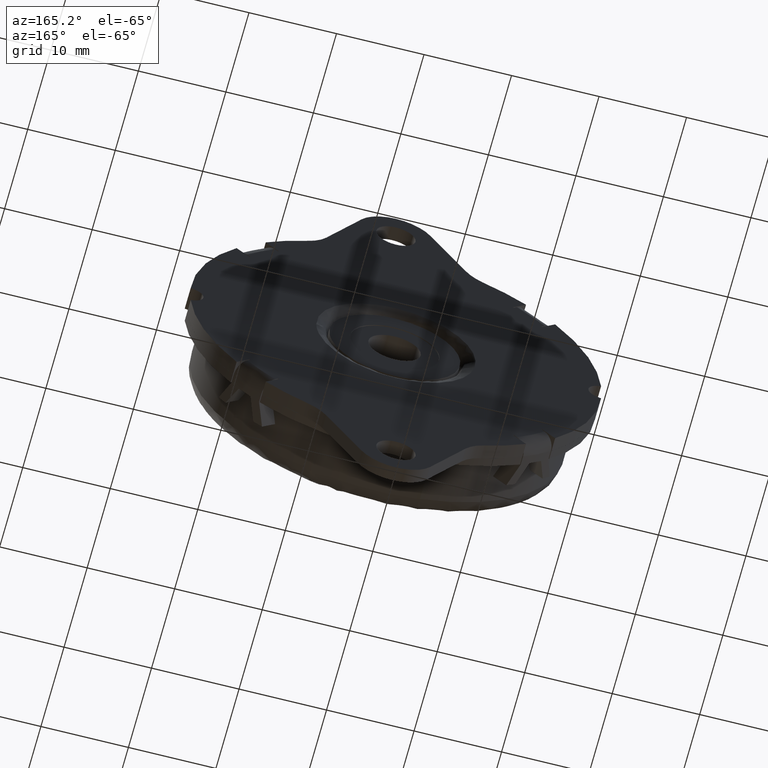
[diagram: clean part render]
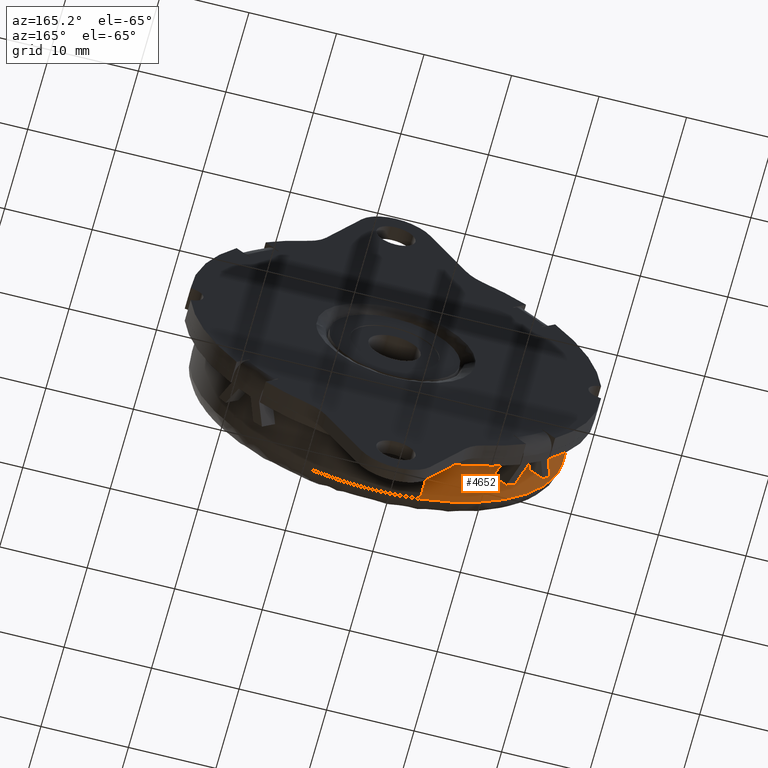
[diagram: same view with one face highlighted and labeled with its STEP entity id]
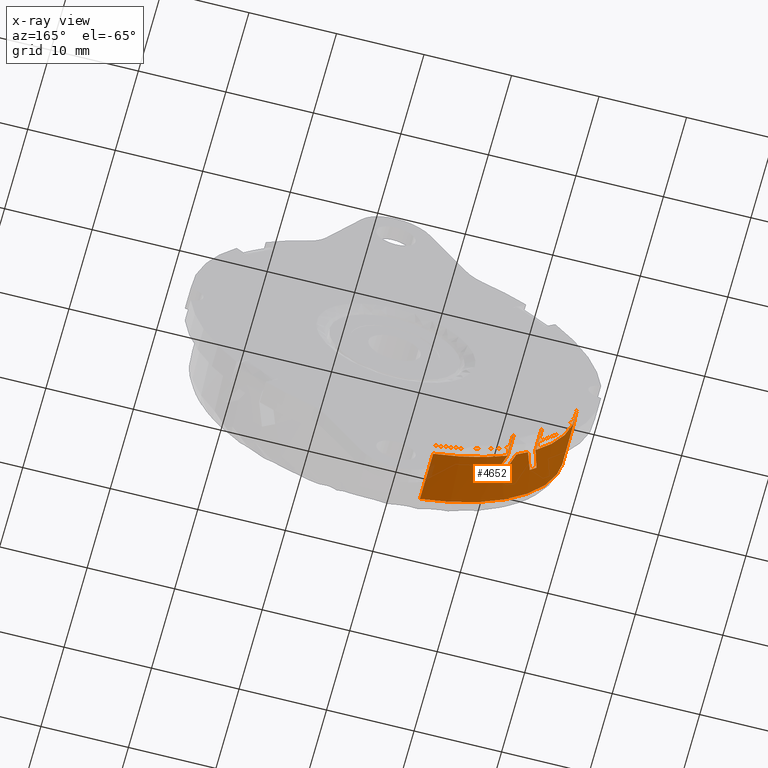
[diagram: x-ray of the same camera — body ghosted, the highlighted face saturated]
A machine part, auxiliary view. The second image highlights one B-rep face of the part: STEP entity #4652.
The next image is the same camera in x-ray: the body ghosted, the highlighted face saturated — about 2% of this face is hidden behind the body in this view.
In plain terms, the highlighted face is a freeform B-spline surface patch.
Its self-contained STEP definition (entity closure, byte-faithful):
#3533=CARTESIAN_POINT('',(-4.938737999895590,-8.300005000006948,-20.822316561036448));
#3534=VERTEX_POINT('',#3533);
#3548=CARTESIAN_POINT('',(-4.938766150646446,-2.600005000000000,-20.822310510505670));
#3549=VERTEX_POINT('',#3548);
#3550=CARTESIAN_POINT('',(-4.938766150646446,-2.600005000000000,-20.822310510505670));
#3551=CARTESIAN_POINT('',(-4.938737999895590,-8.300005000006948,-20.822316561036448));
#3552=QUASI_UNIFORM_CURVE('',1,(#3550,#3551),.UNSPECIFIED.,.F.,.U.);
#3553=EDGE_CURVE('',#3549,#3534,#3552,.T.);
#3577=CARTESIAN_POINT('',(-4.938772237403629,-1.610005000011177,-20.822309211199570));
#3578=VERTEX_POINT('',#3577);
#3592=CARTESIAN_POINT('',(-4.938769138929567,-1.600004999982687,-20.822309946117930));
#3593=VERTEX_POINT('',#3592);
#3594=CARTESIAN_POINT('',(-4.938769138929567,-1.600004999982687,-20.822309946117930));
#3595=CARTESIAN_POINT('',(-4.938772237403629,-1.610005000011177,-20.822309211199570));
#3596=QUASI_UNIFORM_CURVE('',1,(#3594,#3595),.UNSPECIFIED.,.F.,.U.);
#3597=EDGE_CURVE('',#3593,#3578,#3596,.T.);
#4133=CARTESIAN_POINT('',(-21.399876225743970,-1.600004999987096,-0.073004265893027));
#4134=VERTEX_POINT('',#4133);
#4148=CARTESIAN_POINT('',(-21.399876225621298,-1.610005000010189,-0.073004301849790));
#4149=VERTEX_POINT('',#4148);
#4150=CARTESIAN_POINT('',(-21.399876225743970,-1.600004999987096,-0.073004265893027));
#4151=CARTESIAN_POINT('',(-21.399876225621298,-1.610005000010189,-0.073004301849790));
#4152=QUASI_UNIFORM_CURVE('',1,(#4150,#4151),.UNSPECIFIED.,.F.,.U.);
#4153=EDGE_CURVE('',#4134,#4149,#4152,.T.);
#4177=CARTESIAN_POINT('',(-21.399876061226148,-2.600005000000000,-0.073004231344138));
#4178=VERTEX_POINT('',#4177);
#4192=CARTESIAN_POINT('',(-21.399875559891559,-8.300005000005893,-0.072979589982576));
#4193=VERTEX_POINT('',#4192);
#4194=CARTESIAN_POINT('',(-21.399876061226148,-2.600005000000000,-0.073004231344138));
#4195=CARTESIAN_POINT('',(-21.399875559891559,-8.300005000005893,-0.072979589982576));
#4196=QUASI_UNIFORM_CURVE('',1,(#4194,#4195),.UNSPECIFIED.,.F.,.U.);
#4197=EDGE_CURVE('',#4178,#4193,#4196,.T.);
#4354=CARTESIAN_POINT('',(-21.400308118367526,0.207500125008099,0.053817314422513));
#4355=CARTESIAN_POINT('',(-21.400092063128174,0.207500125008100,-0.009515480642528));
#4356=CARTESIAN_POINT('',(-21.342363566240174,0.207500125008099,-16.931609448999424));
#4357=CARTESIAN_POINT('',(-4.871684468878418,0.207500125008100,-20.838220706693555));
#4358=CARTESIAN_POINT('',(-4.804733708719587,0.207500125008099,-20.854100476544062));
#4359=CARTESIAN_POINT('',(-21.400308118367526,-8.512692628457275,0.053817314422513));
#4360=CARTESIAN_POINT('',(-21.400092063128174,-8.512692628457275,-0.009515480642528));
#4361=CARTESIAN_POINT('',(-21.342363566240174,-8.512692628457273,-16.931609448999424));
#4362=CARTESIAN_POINT('',(-4.871684468878418,-8.512692628457275,-20.838220706693555));
#4363=CARTESIAN_POINT('',(-4.804733708719587,-8.512692628457273,-20.854100476544062));
#4371=(BOUNDED_SURFACE()B_SPLINE_SURFACE(2,1,((#4354,#4359),(#4355,#4360),(#4356,#4361),(#4357,#4362),(#4358,#4363)),.UNSPECIFIED.,.F.,.F.,.U.)B_SPLINE_SURFACE_WITH_KNOTS((3,1,1,3),(2,2),(0.0,0.148295694128304,29.801662221090080,29.949950091058810),(0.0,8.720192753465376),.UNSPECIFIED.)GEOMETRIC_REPRESENTATION_ITEM()RATIONAL_B_SPLINE_SURFACE(((1.002460781958496,1.002460781958496),(1.001230390979248,1.001230390979248),(0.753969696196700,0.753969696196700),(0.922106924505897,0.922106924505897),(0.922943546228851,0.922943546228851)))REPRESENTATION_ITEM('')SURFACE());
#4372=CARTESIAN_POINT('',(-4.938737999895590,-8.300005000006950,-20.822316561036441));
#4373=CARTESIAN_POINT('',(-21.342382856232319,-8.300005000000001,-16.931620540201273));
#4374=CARTESIAN_POINT('',(-21.399875559891559,-8.300005000005893,-0.072979589982576));
#4382=(BOUNDED_CURVE()B_SPLINE_CURVE(2,(#4372,#4373,#4374),.UNSPECIFIED.,.F.,.U.)B_SPLINE_CURVE_WITH_KNOTS((3,3),(0.539444005086203,0.749397569030809),.UNSPECIFIED.)CURVE()GEOMETRIC_REPRESENTATION_ITEM()RATIONAL_B_SPLINE_CURVE((0.922159088574059,0.753801385382294,0.998591817961188))REPRESENTATION_ITEM(''));
#4383=EDGE_CURVE('',#3534,#4193,#4382,.T.);
#4384=ORIENTED_EDGE('',*,*,#4383,.T.);
#4385=ORIENTED_EDGE('',*,*,#4197,.F.);
#4386=CARTESIAN_POINT('',(-16.702272138371701,-2.600005000000000,-13.378870266796600));
#4387=VERTEX_POINT('',#4386);
#4388=CARTESIAN_POINT('',(-21.399876061226156,-2.600005000000000,-0.073004231344138));
#4389=CARTESIAN_POINT('',(-21.374382392006716,-2.600005000000001,-7.546175814254736));
#4390=CARTESIAN_POINT('',(-16.702272138371701,-2.600005000000000,-13.378870266796600));
#4398=(BOUNDED_CURVE()B_SPLINE_CURVE(2,(#4388,#4389,#4390),.UNSPECIFIED.,.F.,.U.)B_SPLINE_CURVE_WITH_KNOTS((3,3),(0.502428888560448,1.0),.UNSPECIFIED.)CURVE()GEOMETRIC_REPRESENTATION_ITEM()RATIONAL_B_SPLINE_CURVE((0.890242565996605,0.890773165613675,1.0))REPRESENTATION_ITEM(''));
#4399=EDGE_CURVE('',#4178,#4387,#4398,.T.);
#4400=ORIENTED_EDGE('',*,*,#4399,.T.);
#4401=CARTESIAN_POINT('',(-16.702272138371701,-1.610004999999970,-13.378870266796600));
#4402=VERTEX_POINT('',#4401);
#4403=CARTESIAN_POINT('',(-16.702272138371701,-1.610004999999970,-13.378870266796600));
#4404=CARTESIAN_POINT('',(-16.702272138371701,-2.600005000000000,-13.378870266796600));
#4405=QUASI_UNIFORM_CURVE('',1,(#4403,#4404),.UNSPECIFIED.,.F.,.U.);
#4406=EDGE_CURVE('',#4402,#4387,#4405,.T.);
#4407=ORIENTED_EDGE('',*,*,#4406,.F.);
#4408=CARTESIAN_POINT('',(-21.399876225621302,-1.610005000010189,-0.073004301849790));
#4409=CARTESIAN_POINT('',(-21.374382670036550,-1.610004999999971,-7.546175875994128));
#4410=CARTESIAN_POINT('',(-16.702272138371718,-1.610004999999970,-13.378870266796611));
#4418=(BOUNDED_CURVE()B_SPLINE_CURVE(2,(#4408,#4409,#4410),.UNSPECIFIED.,.F.,.U.)B_SPLINE_CURVE_WITH_KNOTS((3,3),(0.502428893251988,1.0),.UNSPECIFIED.)CURVE()GEOMETRIC_REPRESENTATION_ITEM()RATIONAL_B_SPLINE_CURVE((0.890242566006611,0.890773166643562,1.0))REPRESENTATION_ITEM(''));
#4419=EDGE_CURVE('',#4149,#4402,#4418,.T.);
#4420=ORIENTED_EDGE('',*,*,#4419,.F.);
#4421=ORIENTED_EDGE('',*,*,#4153,.F.);
#4422=CARTESIAN_POINT('',(-16.702272138371701,-1.600005000000000,-13.378870266796600));
#4423=VERTEX_POINT('',#4422);
#4424=CARTESIAN_POINT('',(-21.399876225743967,-1.600004999987097,-0.073004265893027));
#4425=CARTESIAN_POINT('',(-21.374382695257584,-1.600005000000000,-7.546175844508020));
#4426=CARTESIAN_POINT('',(-16.702272138371718,-1.600005000000000,-13.378870266796611));
#4434=(BOUNDED_CURVE()B_SPLINE_CURVE(2,(#4424,#4425,#4426),.UNSPECIFIED.,.F.,.U.)B_SPLINE_CURVE_WITH_KNOTS((3,3),(0.502428890859377,1.0),.UNSPECIFIED.)CURVE()GEOMETRIC_REPRESENTATION_ITEM()RATIONAL_B_SPLINE_CURVE((0.890242566001508,0.890773166118336,1.0))REPRESENTATION_ITEM(''));
#4435=EDGE_CURVE('',#4134,#4423,#4434,.T.);
#4436=ORIENTED_EDGE('',*,*,#4435,.T.);
#4437=CARTESIAN_POINT('',(-16.702272138371701,0.0,-13.378870266796600));
#4438=VERTEX_POINT('',#4437);
#4439=CARTESIAN_POINT('',(-16.702272138371701,0.0,-13.378870266796600));
#4440=CARTESIAN_POINT('',(-16.702272138371701,-1.600005000000000,-13.378870266796600));
#4441=QUASI_UNIFORM_CURVE('',1,(#4439,#4440),.UNSPECIFIED.,.F.,.U.);
#4442=EDGE_CURVE('',#4438,#4423,#4441,.T.);
#4443=ORIENTED_EDGE('',*,*,#4442,.F.);
#4444=CARTESIAN_POINT('',(-16.639205504003051,0.0,-13.457224988665260));
#4445=VERTEX_POINT('',#4444);
#4446=CARTESIAN_POINT('',(-16.702272138371718,0.0,-13.378870266796611));
#4447=CARTESIAN_POINT('',(-16.670830890628604,0.0,-13.418121733153880));
#4448=CARTESIAN_POINT('',(-16.639205504003058,0.0,-13.457224988665260));
#4456=(BOUNDED_CURVE()B_SPLINE_CURVE(2,(#4446,#4447,#4448),.UNSPECIFIED.,.F.,.U.)CURVE()GEOMETRIC_REPRESENTATION_ITEM()QUASI_UNIFORM_CURVE()RATIONAL_B_SPLINE_CURVE((1.0,0.999997238602891,1.0))REPRESENTATION_ITEM(''));
#4457=EDGE_CURVE('',#4438,#4445,#4456,.T.);
#4458=ORIENTED_EDGE('',*,*,#4457,.T.);
#4459=CARTESIAN_POINT('',(-16.639205504003051,-2.600005000000000,-13.457224988665260));
#4460=VERTEX_POINT('',#4459);
#4461=CARTESIAN_POINT('',(-16.639205504003051,0.0,-13.457224988665260));
#4462=CARTESIAN_POINT('',(-16.639205504003051,-2.600005000000000,-13.457224988665260));
#4463=QUASI_UNIFORM_CURVE('',1,(#4461,#4462),.UNSPECIFIED.,.F.,.U.);
#4464=EDGE_CURVE('',#4445,#4460,#4463,.T.);
#4465=ORIENTED_EDGE('',*,*,#4464,.T.);
#4466=CARTESIAN_POINT('',(-17.403202508667452,-5.100000000000001,-12.453455040361700));
#4467=VERTEX_POINT('',#4466);
#4468=CARTESIAN_POINT('',(-17.403202508667452,-5.100000000000001,-12.453455040361700));
#4469=CARTESIAN_POINT('',(-17.036002443095985,-3.855001618246831,-12.966603535226799));
#4470=CARTESIAN_POINT('',(-16.639205504003051,-2.600005000000000,-13.457224988665260));
#4478=(BOUNDED_CURVE()B_SPLINE_CURVE(2,(#4468,#4469,#4470),.UNSPECIFIED.,.F.,.U.)CURVE()GEOMETRIC_REPRESENTATION_ITEM()QUASI_UNIFORM_CURVE()RATIONAL_B_SPLINE_CURVE((1.0,0.999565577326750,1.0))REPRESENTATION_ITEM(''));
#4479=EDGE_CURVE('',#4467,#4460,#4478,.T.);
#4480=ORIENTED_EDGE('',*,*,#4479,.F.);
#4481=CARTESIAN_POINT('',(-16.639204438069999,-5.100000000000001,-13.457223922730520));
#4482=VERTEX_POINT('',#4481);
#4483=CARTESIAN_POINT('',(-16.639204438069999,-5.100000000000001,-13.457223922730520));
#4484=CARTESIAN_POINT('',(-17.036001956124771,-5.100000000000001,-12.966603042782209));
#4485=CARTESIAN_POINT('',(-17.403202508667459,-5.100000000000001,-12.453455040361719));
#4493=(BOUNDED_CURVE()B_SPLINE_CURVE(2,(#4483,#4484,#4485),.UNSPECIFIED.,.F.,.U.)CURVE()GEOMETRIC_REPRESENTATION_ITEM()QUASI_UNIFORM_CURVE()RATIONAL_B_SPLINE_CURVE((1.0,0.999565575941765,1.0))REPRESENTATION_ITEM(''));
#4494=EDGE_CURVE('',#4482,#4467,#4493,.T.);
#4495=ORIENTED_EDGE('',*,*,#4494,.F.);
#4496=CARTESIAN_POINT('',(-15.787960904944599,-2.600005000000000,-14.446462904944640));
#4497=VERTEX_POINT('',#4496);
#4498=CARTESIAN_POINT('',(-15.787960904944605,-2.600005000000000,-14.446462904944642));
#4499=CARTESIAN_POINT('',(-16.228671730174963,-3.852861631204328,-13.964827596804522));
#4500=CARTESIAN_POINT('',(-16.639204438069999,-5.100000000000001,-13.457223922730520));
#4508=(BOUNDED_CURVE()B_SPLINE_CURVE(2,(#4498,#4499,#4500),.UNSPECIFIED.,.F.,.U.)B_SPLINE_CURVE_WITH_KNOTS((3,3),(0.000001570057026,1.0),.UNSPECIFIED.)CURVE()GEOMETRIC_REPRESENTATION_ITEM()RATIONAL_B_SPLINE_CURVE((0.999999998539854,0.999535002318754,1.0))REPRESENTATION_ITEM(''));
#4509=EDGE_CURVE('',#4497,#4482,#4508,.T.);
#4510=ORIENTED_EDGE('',*,*,#4509,.F.);
#4511=CARTESIAN_POINT('',(-14.446460982802140,-2.600005000000000,-15.787962663763050));
#4512=VERTEX_POINT('',#4511);
#4513=CARTESIAN_POINT('',(-15.787960904944599,-2.600005000000000,-14.446462904944619));
#4514=CARTESIAN_POINT('',(-15.146972081850329,-2.600005000000000,-15.146973925954129));
#4515=CARTESIAN_POINT('',(-14.446460982802140,-2.600005000000000,-15.787962663763031));
#4523=(BOUNDED_CURVE()B_SPLINE_CURVE(2,(#4513,#4514,#4515),.UNSPECIFIED.,.F.,.U.)CURVE()GEOMETRIC_REPRESENTATION_ITEM()QUASI_UNIFORM_CURVE()RATIONAL_B_SPLINE_CURVE((1.0,0.999017104836306,1.0))REPRESENTATION_ITEM(''));
#4524=EDGE_CURVE('',#4497,#4512,#4523,.T.);
#4525=ORIENTED_EDGE('',*,*,#4524,.T.);
#4526=CARTESIAN_POINT('',(-13.457225034598659,-5.100000000000001,-16.639203537674849));
#4527=VERTEX_POINT('',#4526);
#4528=CARTESIAN_POINT('',(-13.457225034598689,-5.100000000000019,-16.639203537674820));
#4529=CARTESIAN_POINT('',(-13.964827153966512,-3.852861625829184,-16.228672112122798));
#4530=CARTESIAN_POINT('',(-14.446460982802140,-2.600005000000010,-15.787962663763031));
#4538=(BOUNDED_CURVE()B_SPLINE_CURVE(2,(#4528,#4529,#4530),.UNSPECIFIED.,.F.,.U.)CURVE()GEOMETRIC_REPRESENTATION_ITEM()QUASI_UNIFORM_CURVE()RATIONAL_B_SPLINE_CURVE((1.0,0.999535004457769,1.0))REPRESENTATION_ITEM(''));
#4539=EDGE_CURVE('',#4527,#4512,#4538,.T.);
#4540=ORIENTED_EDGE('',*,*,#4539,.F.);
#4541=CARTESIAN_POINT('',(-12.453455009760360,-5.100000000000001,-17.403202530565299));
#4542=VERTEX_POINT('',#4541);
#4543=CARTESIAN_POINT('',(-12.453455009760360,-5.100000000000001,-17.403202530565299));
#4544=CARTESIAN_POINT('',(-12.966603610401391,-5.100000000000001,-17.036001551309852));
#4545=CARTESIAN_POINT('',(-13.457225034598659,-5.100000000000001,-16.639203537674849));
#4553=(BOUNDED_CURVE()B_SPLINE_CURVE(2,(#4543,#4544,#4545),.UNSPECIFIED.,.F.,.U.)CURVE()GEOMETRIC_REPRESENTATION_ITEM()QUASI_UNIFORM_CURVE()RATIONAL_B_SPLINE_CURVE((1.0,0.999565574930626,1.0))REPRESENTATION_ITEM(''));
#4554=EDGE_CURVE('',#4542,#4527,#4553,.T.);
#4555=ORIENTED_EDGE('',*,*,#4554,.F.);
#4556=CARTESIAN_POINT('',(-13.457224988665260,-2.600005000000000,-16.639205504003051));
#4557=VERTEX_POINT('',#4556);
#4558=CARTESIAN_POINT('',(-13.457224988665260,-2.600005000000000,-16.639205504003051));
#4559=CARTESIAN_POINT('',(-12.966603520018875,-3.855001618289349,-17.036002454251413));
#4560=CARTESIAN_POINT('',(-12.453455009760360,-5.100000000000001,-17.403202530565299));
#4568=(BOUNDED_CURVE()B_SPLINE_CURVE(2,(#4558,#4559,#4560),.UNSPECIFIED.,.F.,.U.)CURVE()GEOMETRIC_REPRESENTATION_ITEM()QUASI_UNIFORM_CURVE()RATIONAL_B_SPLINE_CURVE((1.0,0.999565577321492,1.0))REPRESENTATION_ITEM(''));
#4569=EDGE_CURVE('',#4557,#4542,#4568,.T.);
#4570=ORIENTED_EDGE('',*,*,#4569,.F.);
#4571=CARTESIAN_POINT('',(-13.457224988665260,0.0,-16.639205504003051));
#4572=VERTEX_POINT('',#4571);
#4573=CARTESIAN_POINT('',(-13.457224988665260,0.0,-16.639205504003051));
#4574=CARTESIAN_POINT('',(-13.457224988665260,-2.600005000000000,-16.639205504003051));
#4575=QUASI_UNIFORM_CURVE('',1,(#4573,#4574),.UNSPECIFIED.,.F.,.U.);
#4576=EDGE_CURVE('',#4572,#4557,#4575,.T.);
#4577=ORIENTED_EDGE('',*,*,#4576,.F.);
#4578=CARTESIAN_POINT('',(-13.378870266796600,0.0,-16.702272138371701));
#4579=VERTEX_POINT('',#4578);
#4580=CARTESIAN_POINT('',(-13.457224988665260,0.0,-16.639205504003058));
#4581=CARTESIAN_POINT('',(-13.418121733153882,0.0,-16.670830890628597));
#4582=CARTESIAN_POINT('',(-13.378870266796611,0.0,-16.702272138371711));
#4590=(BOUNDED_CURVE()B_SPLINE_CURVE(2,(#4580,#4581,#4582),.UNSPECIFIED.,.F.,.U.)CURVE()GEOMETRIC_REPRESENTATION_ITEM()QUASI_UNIFORM_CURVE()RATIONAL_B_SPLINE_CURVE((1.0,0.999997238602891,1.0))REPRESENTATION_ITEM(''));
#4591=EDGE_CURVE('',#4572,#4579,#4590,.T.);
#4592=ORIENTED_EDGE('',*,*,#4591,.T.);
#4593=CARTESIAN_POINT('',(-13.378870266796600,-1.600005000000000,-16.702272138371701));
#4594=VERTEX_POINT('',#4593);
#4595=CARTESIAN_POINT('',(-13.378870266796600,0.0,-16.702272138371701));
#4596=CARTESIAN_POINT('',(-13.378870266796600,-1.600005000000000,-16.702272138371701));
#4597=QUASI_UNIFORM_CURVE('',1,(#4595,#4596),.UNSPECIFIED.,.F.,.U.);
#4598=EDGE_CURVE('',#4579,#4594,#4597,.T.);
#4599=ORIENTED_EDGE('',*,*,#4598,.T.);
#4600=CARTESIAN_POINT('',(-13.378870266796611,-1.600005000000000,-16.702272138371711));
#4601=CARTESIAN_POINT('',(-9.622163264353409,-1.600005000000000,-19.711473233867320));
#4602=CARTESIAN_POINT('',(-4.938769138929567,-1.600004999982687,-20.822309946117933));
#4610=(BOUNDED_CURVE()B_SPLINE_CURVE(2,(#4600,#4601,#4602),.UNSPECIFIED.,.F.,.U.)B_SPLINE_CURVE_WITH_KNOTS((3,3),(0.0,0.333437135148812),.UNSPECIFIED.)CURVE()GEOMETRIC_REPRESENTATION_ITEM()RATIONAL_B_SPLINE_CURVE((1.0,0.926803864006935,0.902420347792851))REPRESENTATION_ITEM(''));
#4611=EDGE_CURVE('',#4594,#3593,#4610,.T.);
#4612=ORIENTED_EDGE('',*,*,#4611,.T.);
#4613=ORIENTED_EDGE('',*,*,#3597,.T.);
#4614=CARTESIAN_POINT('',(-13.378870266796620,-1.610004999999970,-16.702272138371701));
#4615=VERTEX_POINT('',#4614);
#4616=CARTESIAN_POINT('',(-13.378870266796630,-1.610004999999970,-16.702272138371701));
#4617=CARTESIAN_POINT('',(-9.622164569916299,-1.610004999999970,-19.711472188084070));
#4618=CARTESIAN_POINT('',(-4.938772237403629,-1.610005000011177,-20.822309211199570));
#4626=(BOUNDED_CURVE()B_SPLINE_CURVE(2,(#4616,#4617,#4618),.UNSPECIFIED.,.F.,.U.)B_SPLINE_CURVE_WITH_KNOTS((3,3),(0.0,0.333437027751780),.UNSPECIFIED.)CURVE()GEOMETRIC_REPRESENTATION_ITEM()RATIONAL_B_SPLINE_CURVE((1.0,0.926803887582737,0.902420363500268))REPRESENTATION_ITEM(''));
#4627=EDGE_CURVE('',#4615,#3578,#4626,.T.);
#4628=ORIENTED_EDGE('',*,*,#4627,.F.);
#4629=CARTESIAN_POINT('',(-13.378870266796600,-2.600005000000000,-16.702272138371701));
#4630=VERTEX_POINT('',#4629);
#4631=CARTESIAN_POINT('',(-13.378870266796620,-1.610004999999970,-16.702272138371701));
#4632=CARTESIAN_POINT('',(-13.378870266796600,-2.600005000000000,-16.702272138371701));
#4633=QUASI_UNIFORM_CURVE('',1,(#4631,#4632),.UNSPECIFIED.,.F.,.U.);
#4634=EDGE_CURVE('',#4615,#4630,#4633,.T.);
#4635=ORIENTED_EDGE('',*,*,#4634,.T.);
#4636=CARTESIAN_POINT('',(-13.378870266796600,-2.600005000000000,-16.702272138371701));
#4637=CARTESIAN_POINT('',(-9.622161991558121,-2.600005000000000,-19.711474042477654));
#4638=CARTESIAN_POINT('',(-4.938766150646446,-2.600005000000001,-20.822310510505673));
#4646=(BOUNDED_CURVE()B_SPLINE_CURVE(2,(#4636,#4637,#4638),.UNSPECIFIED.,.F.,.U.)B_SPLINE_CURVE_WITH_KNOTS((3,3),(0.0,0.333437239850341),.UNSPECIFIED.)CURVE()GEOMETRIC_REPRESENTATION_ITEM()RATIONAL_B_SPLINE_CURVE((1.0,0.926803841022850,0.902420332479676))REPRESENTATION_ITEM(''));
#4647=EDGE_CURVE('',#4630,#3549,#4646,.T.);
#4648=ORIENTED_EDGE('',*,*,#4647,.T.);
#4649=ORIENTED_EDGE('',*,*,#3553,.T.);
#4650=EDGE_LOOP('',(#4384,#4385,#4400,#4407,#4420,#4421,#4436,#4443,#4458,#4465,#4480,#4495,#4510,#4525,#4540,#4555,#4570,#4577,#4592,#4599,#4612,#4613,#4628,#4635,#4648,#4649));
#4651=FACE_OUTER_BOUND('',#4650,.T.);
#4652=ADVANCED_FACE('',(#4651),#4371,.T.);